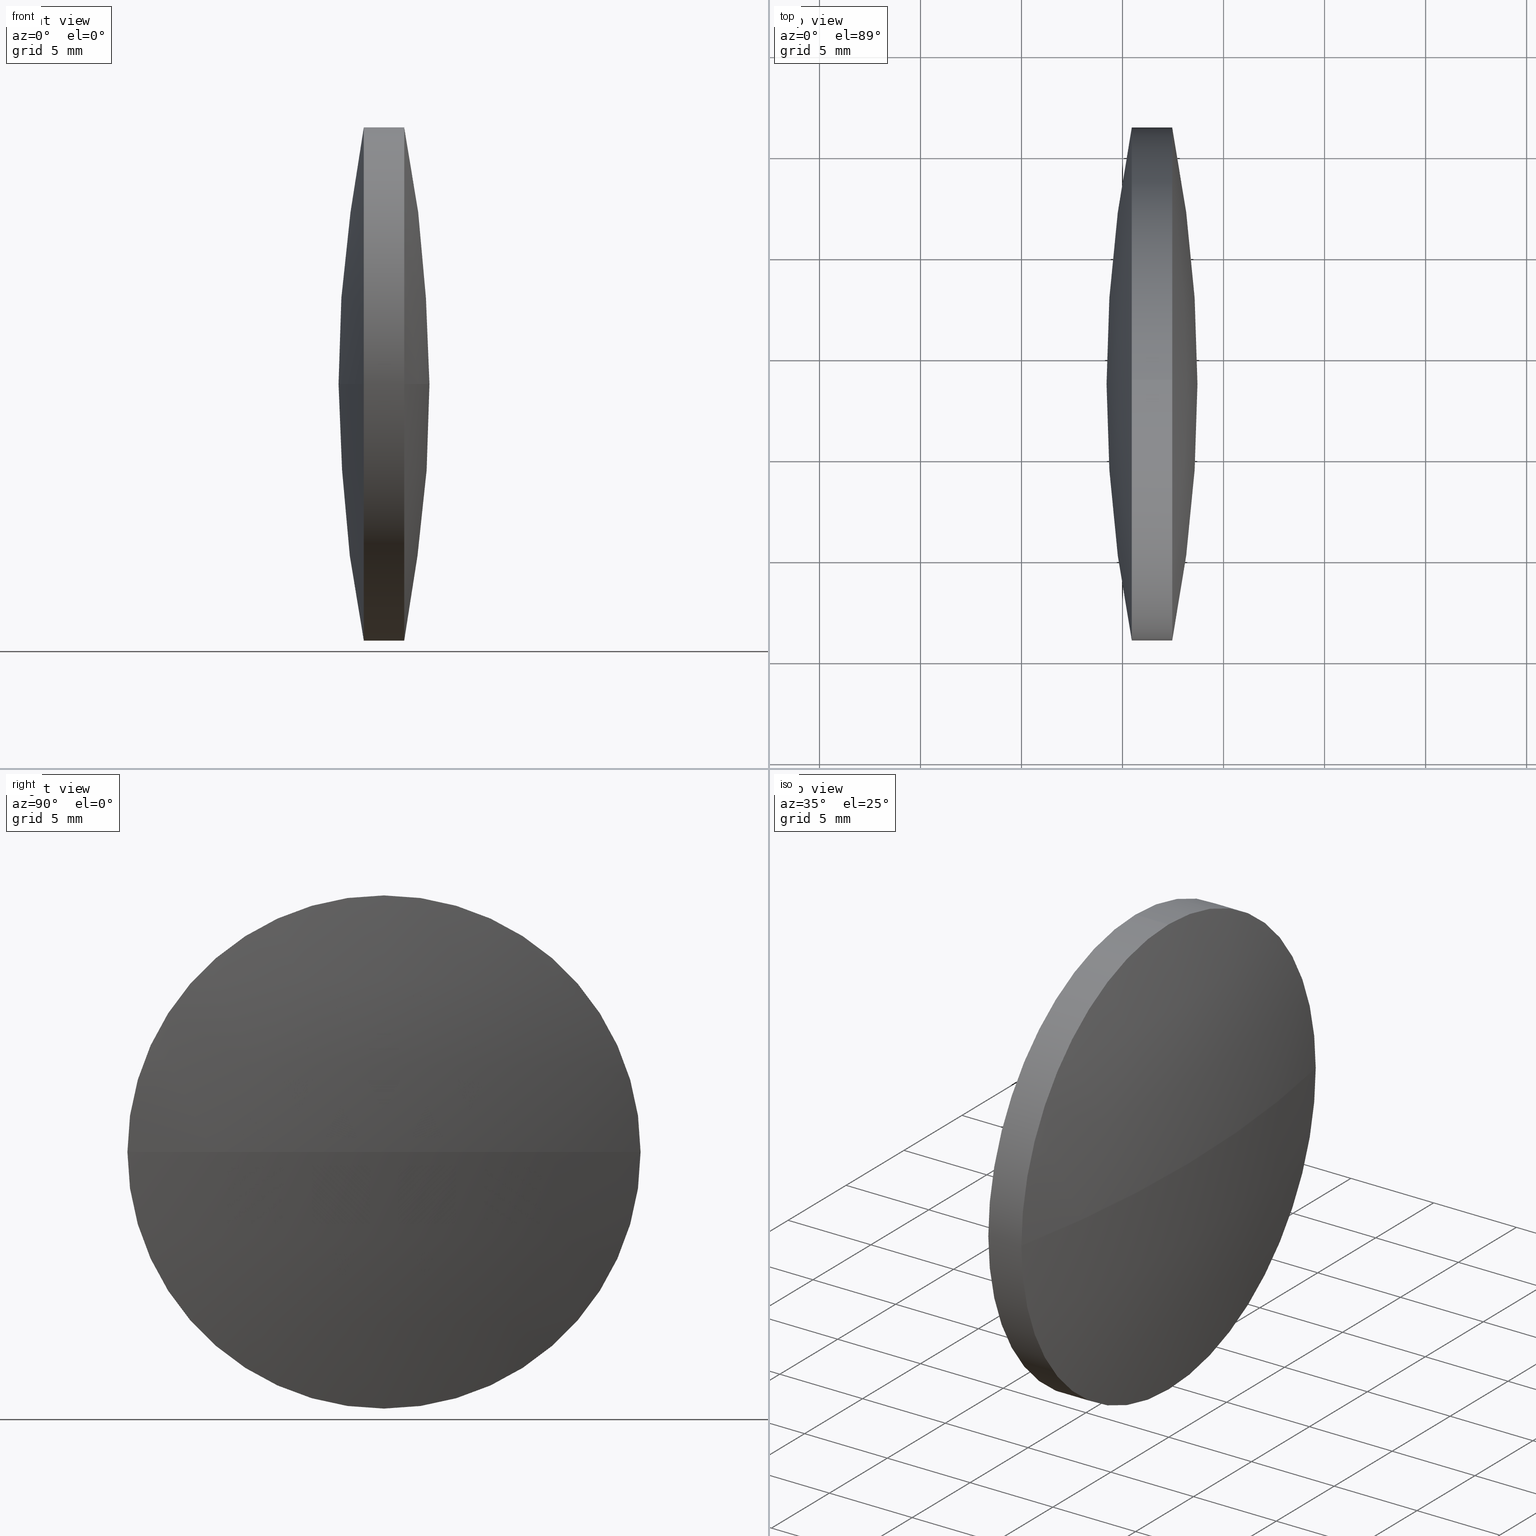
[diagram: canonical four-view strip — front | top / right | iso, engineering-drawing reading convention]
A machine part, canonical four-view strip (front | top / right | iso — engineering-drawing reading convention). The complete STEP part file that produces these views, byte-faithful:
ISO-10303-21;
HEADER;
FILE_DESCRIPTION (( 'STEP AP203' ),
    '1' );
FILE_NAME ('110141.STEP',
    '2019-07-08T09:17:46',
    ( '' ),
    ( '' ),
    'SwSTEP 2.0',
    'SolidWorks 2016',
    '' );
FILE_SCHEMA (( 'CONFIG_CONTROL_DESIGN' ));
ENDSEC;

DATA;
#1 = DIRECTION ( 'NONE',  ( -1.000000000000000000, 0.0000000000000000000, 0.0000000000000000000 ) ) ;
#2 = CARTESIAN_POINT ( 'NONE',  ( 23.56909853311203000, 48.61611302318482300, 0.0000000000000000000 ) ) ;
#3 = ORIENTED_EDGE ( 'NONE', *, *, #71, .F. ) ;
#4 = DIRECTION ( 'NONE',  ( -0.0000000000000000000, 0.0000000000000000000, -1.000000000000000000 ) ) ;
#5 = ADVANCED_FACE ( 'NONE', ( #35 ), #213, .T. ) ;
#6 = PERSON_AND_ORGANIZATION ( #274, #271 ) ;
#7 = CIRCLE ( 'NONE', #246, 12.69999999999999600 ) ;
#8 = DESIGN_CONTEXT ( 'detailed design', #189, 'design' ) ;
#9 = PERSON_AND_ORGANIZATION ( #274, #271 ) ;
#10 = PERSON_AND_ORGANIZATION_ROLE ( 'creator' ) ;
#11 = CC_DESIGN_PERSON_AND_ORGANIZATION_ASSIGNMENT ( #148, #110, ( #77 ) ) ;
#12 = ORIENTED_EDGE ( 'NONE', *, *, #152, .T. ) ;
#13 = FACE_OUTER_BOUND ( 'NONE', #43, .T. ) ;
#14 = DIRECTION ( 'NONE',  ( 0.0000000000000000000, 0.0000000000000000000, 1.000000000000000000 ) ) ;
#15 = EDGE_CURVE ( 'NONE', #25, #255, #7, .T. ) ;
#16 = PERSON_AND_ORGANIZATION_ROLE ( 'classification_officer' ) ;
#17 = CIRCLE ( 'NONE', #291, 12.69999999999999600 ) ;
#18 = DIRECTION ( 'NONE',  ( 0.0000000000000000000, -1.000000000000000000, -1.224646799147353200E-016 ) ) ;
#19 = FACE_OUTER_BOUND ( 'NONE', #81, .T. ) ;
#20 = SHAPE_DEFINITION_REPRESENTATION ( #342, #36 ) ;
#21 = PERSON_AND_ORGANIZATION ( #274, #271 ) ;
#22 = ADVANCED_FACE ( 'NONE', ( #79 ), #268, .T. ) ;
#23 = LINE ( 'NONE', #215, #144 ) ;
#24 = AXIS2_PLACEMENT_3D ( 'NONE', #2, #322, #1 ) ;
#25 = VERTEX_POINT ( 'NONE', #262 ) ;
#26 = DATE_AND_TIME ( #220, #90 ) ;
#27 = LOCAL_TIME ( 17, 17, 46.00000000000000000, #176 ) ;
#28 = CARTESIAN_POINT ( 'NONE',  ( 88.70790806037683800, 48.61611302318481600, 0.0000000000000000000 ) ) ;
#29 = DIRECTION ( 'NONE',  ( -1.000000000000000000, -0.0000000000000000000, -0.0000000000000000000 ) ) ;
#30 = ORIENTED_EDGE ( 'NONE', *, *, #50, .T. ) ;
#31 = AXIS2_PLACEMENT_3D ( 'NONE', #313, #345, #315 ) ;
#32 = EDGE_CURVE ( 'NONE', #237, #265, #344, .T. ) ;
#33 = LOCAL_TIME ( 17, 17, 46.00000000000000000, #343 ) ;
#34 = APPROVAL_STATUS ( 'not_yet_approved' ) ;
#35 = FACE_OUTER_BOUND ( 'NONE', #339, .T. ) ;
#36 = ADVANCED_BREP_SHAPE_REPRESENTATION ( '110141', ( #283, #187 ), #172 ) ;
#37 = AXIS2_PLACEMENT_3D ( 'NONE', #251, #91, #194 ) ;
#38 = APPROVAL_DATE_TIME ( #309, #249 ) ;
#39 = CARTESIAN_POINT ( 'NONE',  ( 87.45786520323396500, 48.61611302318478100, 0.0000000000000000000 ) ) ;
#40 = CC_DESIGN_DATE_AND_TIME_ASSIGNMENT ( #26, #217, ( #333 ) ) ;
#41 = ORIENTED_EDGE ( 'NONE', *, *, #195, .T. ) ;
#42 = PERSON_AND_ORGANIZATION_ROLE ( 'design_supplier' ) ;
#43 = EDGE_LOOP ( 'NONE', ( #170, #151, #328, #143, #87, #3 ) ) ;
#44 = CC_DESIGN_DATE_AND_TIME_ASSIGNMENT ( #184, #303, ( #77 ) ) ;
#45 = COORDINATED_UNIVERSAL_TIME_OFFSET ( 8, 0, .AHEAD. ) ;
#46 = ORIENTED_EDGE ( 'NONE', *, *, #67, .T. ) ;
#47 = CIRCLE ( 'NONE', #166, 12.69999999999999600 ) ;
#48 = DIRECTION ( 'NONE',  ( 0.0000000000000000000, 0.0000000000000000000, 1.000000000000000000 ) ) ;
#49 = CC_DESIGN_PERSON_AND_ORGANIZATION_ASSIGNMENT ( #124, #16, ( #241 ) ) ;
#50 = EDGE_CURVE ( 'NONE', #307, #25, #260, .T. ) ;
#51 = CLOSED_SHELL ( 'NONE', ( #312, #22, #231, #95, #5, #273 ) ) ;
#52 = LOCAL_TIME ( 17, 17, 46.00000000000000000, #139 ) ;
#53 = DIRECTION ( 'NONE',  ( -1.000000000000000000, -0.0000000000000000000, -0.0000000000000000000 ) ) ;
#54 = DIRECTION ( 'NONE',  ( 0.0000000000000000000, 0.0000000000000000000, 1.000000000000000000 ) ) ;
#55 = AXIS2_PLACEMENT_3D ( 'NONE', #136, #83, #18 ) ;
#56 = APPLICATION_CONTEXT ( 'configuration controlled 3d designs of mechanical parts and assemblies' ) ;
#57 = CALENDAR_DATE ( 2019, 8, 7 ) ;
#58 = CC_DESIGN_APPROVAL ( #263, ( #77 ) ) ;
#59 =( LENGTH_UNIT ( ) NAMED_UNIT ( * ) SI_UNIT ( .MILLI., .METRE. ) );
#60 = APPROVAL_ROLE ( '' ) ;
#61 = ORIENTED_EDGE ( 'NONE', *, *, #93, .T. ) ;
#62 = DIRECTION ( 'NONE',  ( -0.0000000000000000000, 0.0000000000000000000, 1.000000000000000000 ) ) ;
#63 = DIRECTION ( 'NONE',  ( 0.0000000000000000000, 0.0000000000000000000, 1.000000000000000000 ) ) ;
#64 = APPROVAL_ROLE ( '' ) ;
#65 = FACE_OUTER_BOUND ( 'NONE', #100, .T. ) ;
#66 = APPROVAL_ROLE ( '' ) ;
#67 = EDGE_CURVE ( 'NONE', #227, #199, #23, .T. ) ;
#68 = DIRECTION ( 'NONE',  ( 0.0000000000000000000, 0.0000000000000000000, 1.000000000000000000 ) ) ;
#69 = CIRCLE ( 'NONE', #37, 65.13880952726569300 ) ;
#70 = DIRECTION ( 'NONE',  ( -1.000000000000000000, -0.0000000000000000000, -0.0000000000000000000 ) ) ;
#71 = EDGE_CURVE ( 'NONE', #199, #307, #17, .T. ) ;
#72 = CC_DESIGN_PERSON_AND_ORGANIZATION_ASSIGNMENT ( #290, #113, ( #207 ) ) ;
#73 = ORIENTED_EDGE ( 'NONE', *, *, #112, .T. ) ;
#74 = LINE ( 'NONE', #245, #284 ) ;
#75 = APPROVAL_PERSON_ORGANIZATION ( #244, #125, #159 ) ;
#76 = CARTESIAN_POINT ( 'NONE',  ( 85.45852234609111500, 35.91611302318478500, -1.555301434917133100E-015 ) ) ;
#77 = SECURITY_CLASSIFICATION ( '', '', #243 ) ;
#78 = EDGE_CURVE ( 'NONE', #255, #156, #137, .T. ) ;
#79 = FACE_OUTER_BOUND ( 'NONE', #115, .T. ) ;
#80 = CALENDAR_DATE ( 2019, 8, 7 ) ;
#81 = EDGE_LOOP ( 'NONE', ( #12, #46, #258, #323, #222, #174 ) ) ;
#82 = CALENDAR_DATE ( 2019, 8, 7 ) ;
#83 = DIRECTION ( 'NONE',  ( 0.0000000000000000000, -1.224646799147353200E-016, 1.000000000000000000 ) ) ;
#84 = CIRCLE ( 'NONE', #149, 12.69999999999999600 ) ;
#85 = DIRECTION ( 'NONE',  ( 0.0000000000000000000, 1.000000000000000000, 0.0000000000000000000 ) ) ;
#86 = APPROVAL_STATUS ( 'not_yet_approved' ) ;
#87 = ORIENTED_EDGE ( 'NONE', *, *, #50, .F. ) ;
#88 = CC_DESIGN_DATE_AND_TIME_ASSIGNMENT ( #325, #294, ( #177 ) ) ;
#89 = CIRCLE ( 'NONE', #24, 65.13880952726481200 ) ;
#90 = LOCAL_TIME ( 17, 17, 46.00000000000000000, #171 ) ;
#91 = DIRECTION ( 'NONE',  ( 0.0000000000000000000, 1.224646799147353200E-016, -1.000000000000000000 ) ) ;
#92 = ORIENTED_EDGE ( 'NONE', *, *, #226, .T. ) ;
#93 = EDGE_CURVE ( 'NONE', #295, #160, #196, .T. ) ;
#94 = DATE_AND_TIME ( #310, #121 ) ;
#95 = ADVANCED_FACE ( 'NONE', ( #65 ), #287, .T. ) ;
#96 = CALENDAR_DATE ( 2019, 8, 7 ) ;
#97 = DIRECTION ( 'NONE',  ( -1.000000000000000000, -0.0000000000000000000, -0.0000000000000000000 ) ) ;
#98 = CC_DESIGN_PERSON_AND_ORGANIZATION_ASSIGNMENT ( #247, #326, ( #296 ) ) ;
#99 = EDGE_CURVE ( 'NONE', #265, #160, #203, .T. ) ;
#100 = EDGE_LOOP ( 'NONE', ( #250, #30, #336, #104 ) ) ;
#101 = APPROVAL_DATE_TIME ( #204, #125 ) ;
#102 = CARTESIAN_POINT ( 'NONE',  ( 23.56909853311203000, 48.61611302318482300, 0.0000000000000000000 ) ) ;
#103 = AXIS2_PLACEMENT_3D ( 'NONE', #108, #304, #85 ) ;
#104 = ORIENTED_EDGE ( 'NONE', *, *, #78, .T. ) ;
#105 = DIRECTION ( 'NONE',  ( 0.0000000000000000000, 0.0000000000000000000, 1.000000000000000000 ) ) ;
#106 = APPROVAL_DATE_TIME ( #178, #180 ) ;
#107 = CC_DESIGN_PERSON_AND_ORGANIZATION_ASSIGNMENT ( #141, #186, ( #207 ) ) ;
#108 = CARTESIAN_POINT ( 'NONE',  ( 149.3472890162139800, 48.61611302318474500, 0.0000000000000000000 ) ) ;
#109 = ORIENTED_EDGE ( 'NONE', *, *, #71, .T. ) ;
#110 = PERSON_AND_ORGANIZATION_ROLE ( 'classification_officer' ) ;
#111 = PRODUCT_DEFINITION_FORMATION_WITH_SPECIFIED_SOURCE ( '�κ�', '', #296, .NOT_KNOWN. ) ;
#112 = EDGE_CURVE ( 'NONE', #307, #156, #69, .T. ) ;
#113 = PERSON_AND_ORGANIZATION_ROLE ( 'design_supplier' ) ;
#114 = DIRECTION ( 'NONE',  ( -1.000000000000000000, -0.0000000000000000000, -0.0000000000000000000 ) ) ;
#115 = EDGE_LOOP ( 'NONE', ( #275, #61, #219, #302 ) ) ;
#116 = APPROVAL_PERSON_ORGANIZATION ( #305, #180, #270 ) ;
#117 = DIRECTION ( 'NONE',  ( -1.000000000000000000, -0.0000000000000000000, -0.0000000000000000000 ) ) ;
#118 = CARTESIAN_POINT ( 'NONE',  ( 87.45786520323397900, 35.91611302318481300, 0.0000000000000000000 ) ) ;
#119 = FACE_OUTER_BOUND ( 'NONE', #232, .T. ) ;
#120 = LOCAL_TIME ( 17, 17, 46.00000000000000000, #175 ) ;
#121 = LOCAL_TIME ( 17, 17, 46.00000000000000000, #179 ) ;
#122 = APPROVAL ( #34, 'δָ��' ) ;
#123 = CARTESIAN_POINT ( 'NONE',  ( 85.45852234609111500, 61.31611302318474100, 0.0000000000000000000 ) ) ;
#124 = PERSON_AND_ORGANIZATION ( #274, #271 ) ;
#125 = APPROVAL ( #288, 'δָ��' ) ;
#126 = CYLINDRICAL_SURFACE ( 'NONE', #256, 12.69999999999999600 ) ;
#127 = CARTESIAN_POINT ( 'NONE',  ( 85.45852234609111500, 48.61611302318478100, 0.0000000000000000000 ) ) ;
#128 = CALENDAR_DATE ( 2019, 8, 7 ) ;
#129 = DIRECTION ( 'NONE',  ( 1.000000000000000000, 0.0000000000000000000, 0.0000000000000000000 ) ) ;
#130 = DIRECTION ( 'NONE',  ( 0.0000000000000000000, 0.0000000000000000000, 1.000000000000000000 ) ) ;
#131 = EDGE_CURVE ( 'NONE', #265, #25, #74, .T. ) ;
#132 = CARTESIAN_POINT ( 'NONE',  ( 0.0000000000000000000, 0.0000000000000000000, 0.0000000000000000000 ) ) ;
#133 = ORIENTED_EDGE ( 'NONE', *, *, #93, .F. ) ;
#134 = MECHANICAL_CONTEXT ( 'NONE', #332, 'mechanical' ) ;
#135 = COORDINATED_UNIVERSAL_TIME_OFFSET ( 8, 0, .AHEAD. ) ;
#136 = CARTESIAN_POINT ( 'NONE',  ( 23.56909853311203000, 48.61611302318482300, 0.0000000000000000000 ) ) ;
#137 = CIRCLE ( 'NONE', #331, 65.13880952726569300 ) ;
#138 = CARTESIAN_POINT ( 'NONE',  ( 87.45786520323396500, 48.61611302318478100, 0.0000000000000000000 ) ) ;
#139 = COORDINATED_UNIVERSAL_TIME_OFFSET ( 8, 0, .AHEAD. ) ;
#140 = PERSON_AND_ORGANIZATION_ROLE ( 'design_owner' ) ;
#141 = PERSON_AND_ORGANIZATION ( #274, #271 ) ;
#142 = CC_DESIGN_APPROVAL ( #180, ( #241 ) ) ;
#143 = ORIENTED_EDGE ( 'NONE', *, *, #131, .T. ) ;
#144 = VECTOR ( 'NONE', #300, 1000.000000000000000 ) ;
#145 = CC_DESIGN_PERSON_AND_ORGANIZATION_ASSIGNMENT ( #9, #140, ( #216 ) ) ;
#146 = CIRCLE ( 'NONE', #31, 12.69999999999999600 ) ;
#147 = LOCAL_TIME ( 17, 17, 46.00000000000000000, #200 ) ;
#148 = PERSON_AND_ORGANIZATION ( #274, #271 ) ;
#149 = AXIS2_PLACEMENT_3D ( 'NONE', #39, #53, #239 ) ;
#150 = CARTESIAN_POINT ( 'NONE',  ( 79.30540135083715800, 48.61611302318478100, 0.0000000000000000000 ) ) ;
#151 = ORIENTED_EDGE ( 'NONE', *, *, #338, .T. ) ;
#152 = EDGE_CURVE ( 'NONE', #160, #227, #47, .T. ) ;
#153 = APPROVAL_PERSON_ORGANIZATION ( #21, #272, #66 ) ;
#154 = AXIS2_PLACEMENT_3D ( 'NONE', #150, #97, #286 ) ;
#155 = CARTESIAN_POINT ( 'NONE',  ( 0.0000000000000000000, 0.0000000000000000000, 0.0000000000000000000 ) ) ;
#156 = VERTEX_POINT ( 'NONE', #253 ) ;
#157 = CYLINDRICAL_SURFACE ( 'NONE', #154, 12.69999999999999600 ) ;
#158 = DIRECTION ( 'NONE',  ( 1.000000000000000000, 0.0000000000000000000, 0.0000000000000000000 ) ) ;
#159 = APPROVAL_ROLE ( '' ) ;
#160 = VERTEX_POINT ( 'NONE', #279 ) ;
#161 = CC_DESIGN_SECURITY_CLASSIFICATION ( #241, ( #111 ) ) ;
#162 = LOCAL_TIME ( 17, 17, 46.00000000000000000, #228 ) ;
#163 = DATE_TIME_ROLE ( 'classification_date' ) ;
#164 = ORIENTED_EDGE ( 'NONE', *, *, #152, .F. ) ;
#165 = DIRECTION ( 'NONE',  ( -1.000000000000000000, -0.0000000000000000000, -0.0000000000000000000 ) ) ;
#166 = AXIS2_PLACEMENT_3D ( 'NONE', #223, #70, #68 ) ;
#167 = APPROVAL_ROLE ( '' ) ;
#168 = CARTESIAN_POINT ( 'NONE',  ( 149.3472890162139800, 48.61611302318474500, 0.0000000000000000000 ) ) ;
#169 = PERSON_AND_ORGANIZATION_ROLE ( 'creator' ) ;
#170 = ORIENTED_EDGE ( 'NONE', *, *, #67, .F. ) ;
#171 = COORDINATED_UNIVERSAL_TIME_OFFSET ( 8, 0, .AHEAD. ) ;
#172 =( GEOMETRIC_REPRESENTATION_CONTEXT ( 3 ) GLOBAL_UNCERTAINTY_ASSIGNED_CONTEXT ( ( #319 ) ) GLOBAL_UNIT_ASSIGNED_CONTEXT ( ( #59, #297, #206 ) ) REPRESENTATION_CONTEXT ( 'NONE', 'WORKASPACE' ) );
#173 = DATE_AND_TIME ( #96, #191 ) ;
#174 = ORIENTED_EDGE ( 'NONE', *, *, #99, .T. ) ;
#175 = COORDINATED_UNIVERSAL_TIME_OFFSET ( 8, 0, .AHEAD. ) ;
#176 = COORDINATED_UNIVERSAL_TIME_OFFSET ( 8, 0, .AHEAD. ) ;
#177 = PRODUCT_DEFINITION ( 'δ֪', '', #111, #266 ) ;
#178 = DATE_AND_TIME ( #252, #52 ) ;
#179 = COORDINATED_UNIVERSAL_TIME_OFFSET ( 8, 0, .AHEAD. ) ;
#180 = APPROVAL ( #86, 'δָ��' ) ;
#181 = DIRECTION ( 'NONE',  ( 0.0000000000000000000, 0.0000000000000000000, 1.000000000000000000 ) ) ;
#182 = CC_DESIGN_PERSON_AND_ORGANIZATION_ASSIGNMENT ( #261, #259, ( #177 ) ) ;
#183 = MECHANICAL_CONTEXT ( 'NONE', #185, 'mechanical' ) ;
#184 = DATE_AND_TIME ( #128, #27 ) ;
#185 = APPLICATION_CONTEXT ( 'configuration controlled 3d designs of mechanical parts and assemblies' ) ;
#186 = PERSON_AND_ORGANIZATION_ROLE ( 'creator' ) ;
#187 = AXIS2_PLACEMENT_3D ( 'NONE', #155, #202, #158 ) ;
#188 = DATE_AND_TIME ( #234, #33 ) ;
#189 = APPLICATION_CONTEXT ( 'configuration controlled 3d designs of mechanical parts and assemblies' ) ;
#190 = CARTESIAN_POINT ( 'NONE',  ( 85.45852234609111500, 48.61611302318478100, 0.0000000000000000000 ) ) ;
#191 = LOCAL_TIME ( 17, 17, 46.00000000000000000, #45 ) ;
#192 = CC_DESIGN_APPROVAL ( #125, ( #111 ) ) ;
#193 = CC_DESIGN_APPROVAL ( #272, ( #207 ) ) ;
#194 = DIRECTION ( 'NONE',  ( 0.0000000000000000000, 1.000000000000000000, 1.224646799147353200E-016 ) ) ;
#195 = EDGE_CURVE ( 'NONE', #255, #199, #146, .T. ) ;
#196 = CIRCLE ( 'NONE', #55, 65.13880952726481200 ) ;
#197 = CC_DESIGN_PERSON_AND_ORGANIZATION_ASSIGNMENT ( #238, #169, ( #333 ) ) ;
#198 = DIRECTION ( 'NONE',  ( 0.0000000000000000000, 0.0000000000000000000, 1.000000000000000000 ) ) ;
#199 = VERTEX_POINT ( 'NONE', #282 ) ;
#200 = COORDINATED_UNIVERSAL_TIME_OFFSET ( 8, 0, .AHEAD. ) ;
#201 = AXIS2_PLACEMENT_3D ( 'NONE', #132, #130, #129 ) ;
#202 = DIRECTION ( 'NONE',  ( 0.0000000000000000000, 0.0000000000000000000, 1.000000000000000000 ) ) ;
#203 = CIRCLE ( 'NONE', #316, 12.69999999999999600 ) ;
#204 = DATE_AND_TIME ( #57, #314 ) ;
#205 = DIRECTION ( 'NONE',  ( 0.0000000000000000000, -1.000000000000000000, 0.0000000000000000000 ) ) ;
#206 =( NAMED_UNIT ( * ) SI_UNIT ( $, .STERADIAN. ) SOLID_ANGLE_UNIT ( ) );
#207 = PRODUCT_DEFINITION_FORMATION_WITH_SPECIFIED_SOURCE ( '�κ�', '', #216, .NOT_KNOWN. ) ;
#208 = SPHERICAL_SURFACE ( 'NONE', #236, 65.13880952726569300 ) ;
#209 = APPLICATION_PROTOCOL_DEFINITION ( 'international standard', 'config_control_design', 1994, #185 ) ;
#210 = DIRECTION ( 'NONE',  ( 0.0000000000000000000, 0.0000000000000000000, 1.000000000000000000 ) ) ;
#211 = APPROVAL_STATUS ( 'not_yet_approved' ) ;
#212 = DIRECTION ( 'NONE',  ( -1.000000000000000000, -0.0000000000000000000, -0.0000000000000000000 ) ) ;
#213 = SPHERICAL_SURFACE ( 'NONE', #235, 65.13880952726481200 ) ;
#214 = APPROVAL_STATUS ( 'not_yet_approved' ) ;
#215 = CARTESIAN_POINT ( 'NONE',  ( 79.30540135083715800, 48.61611302318478100, -12.69999999999999600 ) ) ;
#216 = PRODUCT ( '110141', '110141', '', ( #134 ) ) ;
#217 = DATE_TIME_ROLE ( 'creation_date' ) ;
#218 = CC_DESIGN_APPROVAL ( #122, ( #177 ) ) ;
#219 = ORIENTED_EDGE ( 'NONE', *, *, #99, .F. ) ;
#220 = CALENDAR_DATE ( 2019, 8, 7 ) ;
#221 = CC_DESIGN_PERSON_AND_ORGANIZATION_ASSIGNMENT ( #340, #10, ( #111 ) ) ;
#222 = ORIENTED_EDGE ( 'NONE', *, *, #131, .F. ) ;
#223 = CARTESIAN_POINT ( 'NONE',  ( 87.45786520323396500, 48.61611302318478100, 0.0000000000000000000 ) ) ;
#224 = PERSON_AND_ORGANIZATION ( #274, #271 ) ;
#225 = CARTESIAN_POINT ( 'NONE',  ( 87.45786520323396500, 48.61611302318478100, -12.69999999999999600 ) ) ;
#226 = EDGE_CURVE ( 'NONE', #295, #237, #89, .T. ) ;
#227 = VERTEX_POINT ( 'NONE', #225 ) ;
#228 = COORDINATED_UNIVERSAL_TIME_OFFSET ( 8, 0, .AHEAD. ) ;
#229 = APPROVAL_DATE_TIME ( #94, #272 ) ;
#230 = CC_DESIGN_SECURITY_CLASSIFICATION ( #77, ( #207 ) ) ;
#231 = ADVANCED_FACE ( 'NONE', ( #119 ), #208, .T. ) ;
#232 = EDGE_LOOP ( 'NONE', ( #41, #109, #73, #317 ) ) ;
#233 = CARTESIAN_POINT ( 'NONE',  ( 87.45786520323396500, 48.61611302318478100, 12.69999999999999600 ) ) ;
#234 = CALENDAR_DATE ( 2019, 8, 7 ) ;
#235 = AXIS2_PLACEMENT_3D ( 'NONE', #293, #105, #205 ) ;
#236 = AXIS2_PLACEMENT_3D ( 'NONE', #280, #4, #320 ) ;
#237 = VERTEX_POINT ( 'NONE', #118 ) ;
#238 = PERSON_AND_ORGANIZATION ( #274, #271 ) ;
#239 = DIRECTION ( 'NONE',  ( 0.0000000000000000000, 0.0000000000000000000, 1.000000000000000000 ) ) ;
#240 = ORIENTED_EDGE ( 'NONE', *, *, #338, .F. ) ;
#241 = SECURITY_CLASSIFICATION ( '', '', #301 ) ;
#242 = APPROVAL_DATE_TIME ( #173, #263 ) ;
#243 = SECURITY_CLASSIFICATION_LEVEL ( 'unclassified' ) ;
#244 = PERSON_AND_ORGANIZATION ( #274, #271 ) ;
#245 = CARTESIAN_POINT ( 'NONE',  ( 79.30540135083715800, 48.61611302318478100, 12.69999999999999600 ) ) ;
#246 = AXIS2_PLACEMENT_3D ( 'NONE', #127, #327, #181 ) ;
#247 = PERSON_AND_ORGANIZATION ( #274, #271 ) ;
#248 = APPROVAL_PERSON_ORGANIZATION ( #330, #263, #64 ) ;
#249 = APPROVAL ( #335, 'δָ��' ) ;
#250 = ORIENTED_EDGE ( 'NONE', *, *, #112, .F. ) ;
#251 = CARTESIAN_POINT ( 'NONE',  ( 149.3472890162139800, 48.61611302318474500, 0.0000000000000000000 ) ) ;
#252 = CALENDAR_DATE ( 2019, 8, 7 ) ;
#253 = CARTESIAN_POINT ( 'NONE',  ( 84.20847948894827100, 48.61611302318475200, 0.0000000000000000000 ) ) ;
#254 = AXIS2_PLACEMENT_3D ( 'NONE', #138, #165, #210 ) ;
#255 = VERTEX_POINT ( 'NONE', #123 ) ;
#256 = AXIS2_PLACEMENT_3D ( 'NONE', #324, #29, #198 ) ;
#257 = DATE_AND_TIME ( #80, #147 ) ;
#258 = ORIENTED_EDGE ( 'NONE', *, *, #195, .F. ) ;
#259 = PERSON_AND_ORGANIZATION_ROLE ( 'creator' ) ;
#260 = CIRCLE ( 'NONE', #269, 12.69999999999999600 ) ;
#261 = PERSON_AND_ORGANIZATION ( #274, #271 ) ;
#262 = CARTESIAN_POINT ( 'NONE',  ( 85.45852234609111500, 48.61611302318478100, 12.69999999999999600 ) ) ;
#263 = APPROVAL ( #214, 'δָ��' ) ;
#264 = DIRECTION ( 'NONE',  ( 0.0000000000000000000, -1.000000000000000000, 0.0000000000000000000 ) ) ;
#265 = VERTEX_POINT ( 'NONE', #233 ) ;
#266 = DESIGN_CONTEXT ( 'detailed design', #56, 'design' ) ;
#267 = DIRECTION ( 'NONE',  ( 1.000000000000000000, 0.0000000000000000000, 0.0000000000000000000 ) ) ;
#268 = SPHERICAL_SURFACE ( 'NONE', #308, 65.13880952726481200 ) ;
#269 = AXIS2_PLACEMENT_3D ( 'NONE', #334, #337, #14 ) ;
#270 = APPROVAL_ROLE ( '' ) ;
#271 = ORGANIZATION ( 'δָ��', 'δָ��', '' ) ;
#272 = APPROVAL ( #211, 'δָ��' ) ;
#273 = ADVANCED_FACE ( 'NONE', ( #13 ), #157, .T. ) ;
#274 = PERSON ( 'δָ��', 'δָ��', 'δָ��', ('δָ��'), ('δָ��'), ('δָ��') ) ;
#275 = ORIENTED_EDGE ( 'NONE', *, *, #226, .F. ) ;
#276 = APPROVAL_DATE_TIME ( #257, #122 ) ;
#277 = CARTESIAN_POINT ( 'NONE',  ( 87.45786520323396500, 48.61611302318478100, 0.0000000000000000000 ) ) ;
#278 = CC_DESIGN_APPROVAL ( #249, ( #333 ) ) ;
#279 = CARTESIAN_POINT ( 'NONE',  ( 87.45786520323397900, 61.31611302318479100, 1.555301434917135300E-015 ) ) ;
#280 = CARTESIAN_POINT ( 'NONE',  ( 149.3472890162139800, 48.61611302318474500, 0.0000000000000000000 ) ) ;
#281 = CALENDAR_DATE ( 2019, 8, 7 ) ;
#282 = CARTESIAN_POINT ( 'NONE',  ( 85.45852234609111500, 48.61611302318478100, -12.69999999999999600 ) ) ;
#283 = MANIFOLD_SOLID_BREP ( '��ת1', #51 ) ;
#284 = VECTOR ( 'NONE', #114, 1000.000000000000000 ) ;
#285 = PRODUCT_RELATED_PRODUCT_CATEGORY ( 'detail', '', ( #216 ) ) ;
#286 = DIRECTION ( 'NONE',  ( 0.0000000000000000000, 0.0000000000000000000, 1.000000000000000000 ) ) ;
#287 = SPHERICAL_SURFACE ( 'NONE', #103, 65.13880952726569300 ) ;
#288 = APPROVAL_STATUS ( 'not_yet_approved' ) ;
#289 = APPROVAL_PERSON_ORGANIZATION ( #224, #122, #60 ) ;
#290 = PERSON_AND_ORGANIZATION ( #274, #271 ) ;
#291 = AXIS2_PLACEMENT_3D ( 'NONE', #190, #212, #63 ) ;
#292 = CC_DESIGN_PERSON_AND_ORGANIZATION_ASSIGNMENT ( #6, #42, ( #111 ) ) ;
#293 = CARTESIAN_POINT ( 'NONE',  ( 23.56909853311203000, 48.61611302318482300, 0.0000000000000000000 ) ) ;
#294 = DATE_TIME_ROLE ( 'creation_date' ) ;
#295 = VERTEX_POINT ( 'NONE', #28 ) ;
#296 = PRODUCT ( '110141', '110141', '', ( #183 ) ) ;
#297 =( NAMED_UNIT ( * ) PLANE_ANGLE_UNIT ( ) SI_UNIT ( $, .RADIAN. ) );
#298 = APPROVAL_PERSON_ORGANIZATION ( #321, #249, #167 ) ;
#299 = APPLICATION_PROTOCOL_DEFINITION ( 'international standard', 'config_control_design', 1994, #332 ) ;
#300 = DIRECTION ( 'NONE',  ( -1.000000000000000000, -0.0000000000000000000, -0.0000000000000000000 ) ) ;
#301 = SECURITY_CLASSIFICATION_LEVEL ( 'unclassified' ) ;
#302 = ORIENTED_EDGE ( 'NONE', *, *, #32, .F. ) ;
#303 = DATE_TIME_ROLE ( 'classification_date' ) ;
#304 = DIRECTION ( 'NONE',  ( -0.0000000000000000000, 0.0000000000000000000, -1.000000000000000000 ) ) ;
#305 = PERSON_AND_ORGANIZATION ( #274, #271 ) ;
#306 = APPLICATION_PROTOCOL_DEFINITION ( 'international standard', 'config_control_design', 1994, #189 ) ;
#307 = VERTEX_POINT ( 'NONE', #76 ) ;
#308 = AXIS2_PLACEMENT_3D ( 'NONE', #102, #54, #264 ) ;
#309 = DATE_AND_TIME ( #82, #162 ) ;
#310 = CALENDAR_DATE ( 2019, 8, 7 ) ;
#311 = PRODUCT_DEFINITION_SHAPE ( 'NONE', 'NONE',  #177 ) ;
#312 = ADVANCED_FACE ( 'NONE', ( #19 ), #126, .T. ) ;
#313 = CARTESIAN_POINT ( 'NONE',  ( 85.45852234609111500, 48.61611302318478100, 0.0000000000000000000 ) ) ;
#314 = LOCAL_TIME ( 17, 17, 46.00000000000000000, #135 ) ;
#315 = DIRECTION ( 'NONE',  ( 0.0000000000000000000, 0.0000000000000000000, 1.000000000000000000 ) ) ;
#316 = AXIS2_PLACEMENT_3D ( 'NONE', #277, #117, #48 ) ;
#317 = ORIENTED_EDGE ( 'NONE', *, *, #78, .F. ) ;
#318 = CC_DESIGN_DATE_AND_TIME_ASSIGNMENT ( #188, #163, ( #241 ) ) ;
#319 = UNCERTAINTY_MEASURE_WITH_UNIT (LENGTH_MEASURE( 1.000000000000000100E-005 ), #59, 'distance_accuracy_value', 'NONE');
#320 = DIRECTION ( 'NONE',  ( 0.0000000000000000000, 1.000000000000000000, 0.0000000000000000000 ) ) ;
#321 = PERSON_AND_ORGANIZATION ( #274, #271 ) ;
#322 = DIRECTION ( 'NONE',  ( 0.0000000000000000000, 0.0000000000000000000, -1.000000000000000000 ) ) ;
#323 = ORIENTED_EDGE ( 'NONE', *, *, #15, .F. ) ;
#324 = CARTESIAN_POINT ( 'NONE',  ( 79.30540135083715800, 48.61611302318478100, 0.0000000000000000000 ) ) ;
#325 = DATE_AND_TIME ( #281, #120 ) ;
#326 = PERSON_AND_ORGANIZATION_ROLE ( 'design_owner' ) ;
#327 = DIRECTION ( 'NONE',  ( -1.000000000000000000, -0.0000000000000000000, -0.0000000000000000000 ) ) ;
#328 = ORIENTED_EDGE ( 'NONE', *, *, #32, .T. ) ;
#329 = APPLICATION_PROTOCOL_DEFINITION ( 'international standard', 'config_control_design', 1994, #56 ) ;
#330 = PERSON_AND_ORGANIZATION ( #274, #271 ) ;
#331 = AXIS2_PLACEMENT_3D ( 'NONE', #168, #62, #267 ) ;
#332 = APPLICATION_CONTEXT ( 'configuration controlled 3d designs of mechanical parts and assemblies' ) ;
#333 = PRODUCT_DEFINITION ( 'δ֪', '', #207, #8 ) ;
#334 = CARTESIAN_POINT ( 'NONE',  ( 85.45852234609111500, 48.61611302318478100, 0.0000000000000000000 ) ) ;
#335 = APPROVAL_STATUS ( 'not_yet_approved' ) ;
#336 = ORIENTED_EDGE ( 'NONE', *, *, #15, .T. ) ;
#337 = DIRECTION ( 'NONE',  ( -1.000000000000000000, -0.0000000000000000000, -0.0000000000000000000 ) ) ;
#338 = EDGE_CURVE ( 'NONE', #227, #237, #84, .T. ) ;
#339 = EDGE_LOOP ( 'NONE', ( #133, #92, #240, #164 ) ) ;
#340 = PERSON_AND_ORGANIZATION ( #274, #271 ) ;
#341 = PRODUCT_RELATED_PRODUCT_CATEGORY ( 'detail', '', ( #296 ) ) ;
#342 = PRODUCT_DEFINITION_SHAPE ( 'NONE', 'NONE',  #333 ) ;
#343 = COORDINATED_UNIVERSAL_TIME_OFFSET ( 8, 0, .AHEAD. ) ;
#344 = CIRCLE ( 'NONE', #254, 12.69999999999999600 ) ;
#345 = DIRECTION ( 'NONE',  ( -1.000000000000000000, -0.0000000000000000000, -0.0000000000000000000 ) ) ;
ENDSEC;
END-ISO-10303-21;
